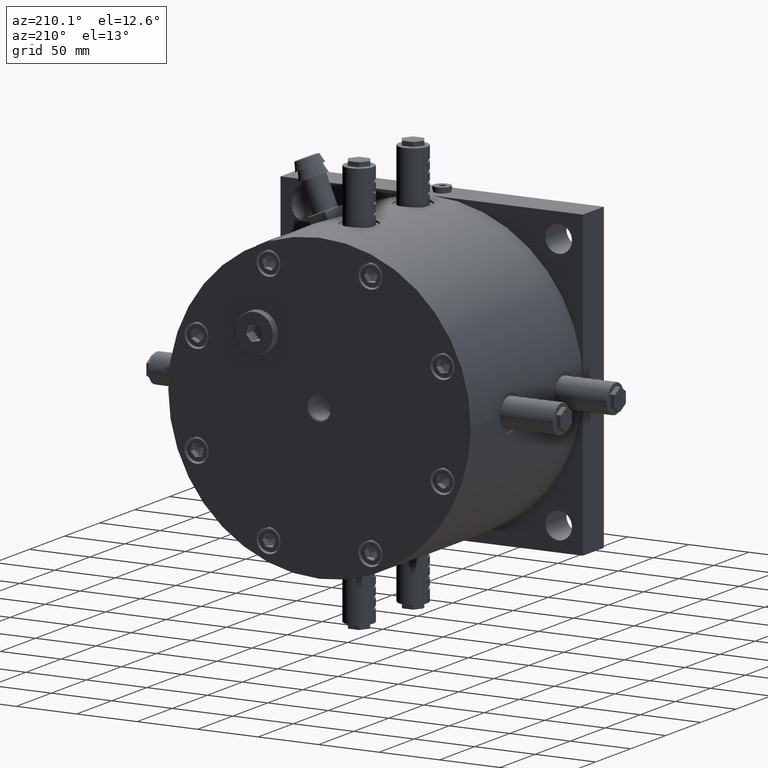
[diagram: clean part render]
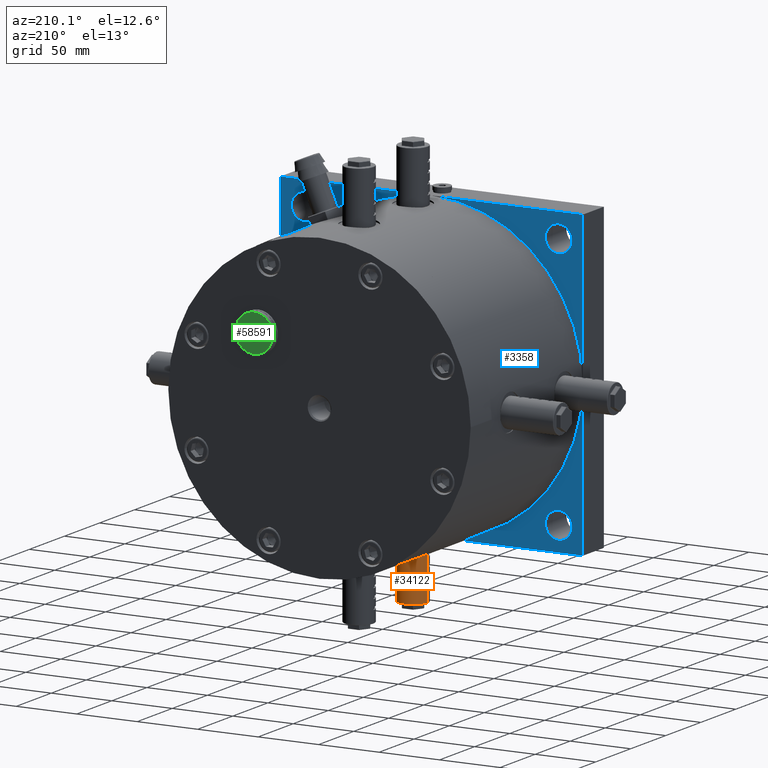
[diagram: same view with three faces highlighted in distinct colors, each labeled with its STEP entity id]
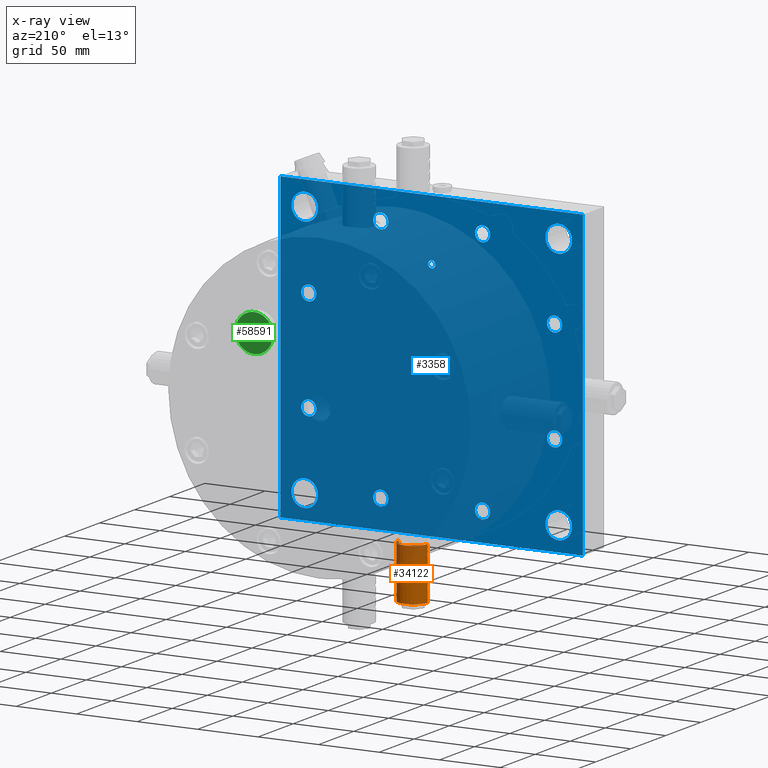
[diagram: x-ray of the same camera — body ghosted, the three highlighted faces saturated]
A machine part, auxiliary view with three faces highlighted in distinct colors.
The next image is the same camera in x-ray (body ghosted, the three faces saturated) — at least one of them is partly hidden behind the body in this view.
Their STEP definitions:

[orange] entity #34122 — the highlighted cylindrical surface (edge-blend (fillet) strip) has radius 12 mm, axis along (-0, -0, 1).
#915 = ORIENTED_EDGE ( 'NONE', *, *, #47420, .F. ) ;
#1434 = VECTOR ( 'NONE', #30612, 1000.000000000000000 ) ;
#2044 = CARTESIAN_POINT ( 'NONE',  ( 12.00000000000044100, 56.50000000000000000, -131.5000000000000000 ) ) ;
#2527 = VECTOR ( 'NONE', #56148, 1000.000000000000000 ) ;
#3130 = VERTEX_POINT ( 'NONE', #33506 ) ;
#4868 = EDGE_CURVE ( 'NONE', #11273, #29327, #64728, .T. ) ;
#5268 = CARTESIAN_POINT ( 'NONE',  ( -11.99999999999956100, 56.50000000000000000, -167.5000000000000000 ) ) ;
#5315 = VERTEX_POINT ( 'NONE', #55597 ) ;
#5705 = DIRECTION ( 'NONE',  ( 6.123031769111929400E-017, 1.648773598957214900E-031, -1.000000000000000000 ) ) ;
#6185 = CARTESIAN_POINT ( 'NONE',  ( -11.99999999999955900, 56.50000000000000000, -141.5000000000000000 ) ) ;
#6313 = CARTESIAN_POINT ( 'NONE',  ( 12.00000000000043700, 56.50000000000000000, -124.0000000000000000 ) ) ;
#6510 = CARTESIAN_POINT ( 'NONE',  ( -11.99999999999955900, 56.50000000000000000, -167.5000000000000000 ) ) ;
#6723 = VECTOR ( 'NONE', #65119, 1000.000000000000000 ) ;
#7144 = VECTOR ( 'NONE', #40169, 1000.000000000000000 ) ;
#8014 = ORIENTED_EDGE ( 'NONE', *, *, #67031, .F. ) ;
#8832 = CARTESIAN_POINT ( 'NONE',  ( -11.99999999999955900, 56.50000000000000000, -167.5000000000000000 ) ) ;
#9044 = CARTESIAN_POINT ( 'NONE',  ( 12.00000000000043900, 56.50000000000000000, -167.5000000000000000 ) ) ;
#9290 = DIRECTION ( 'NONE',  ( -6.123031769111929400E-017, -1.648773598957214900E-031, 1.000000000000000000 ) ) ;
#9435 = ORIENTED_EDGE ( 'NONE', *, *, #25353, .T. ) ;
#10596 = VECTOR ( 'NONE', #53608, 1000.000000000000000 ) ;
#11253 = FACE_OUTER_BOUND ( 'NONE', #58643, .T. ) ;
#11273 = VERTEX_POINT ( 'NONE', #44875 ) ;
#11458 = CARTESIAN_POINT ( 'NONE',  ( 12.00000000000044100, 56.50000000000000000, -133.5000000000000000 ) ) ;
#11867 = CARTESIAN_POINT ( 'NONE',  ( 12.00000000000043900, 56.50000000000000000, -167.5000000000000000 ) ) ;
#12197 = CARTESIAN_POINT ( 'NONE',  ( -11.99999999999956100, 56.50000000000000000, -167.5000000000000000 ) ) ;
#13722 = VECTOR ( 'NONE', #21747, 1000.000000000000000 ) ;
#13843 = VERTEX_POINT ( 'NONE', #37110 ) ;
#14843 = VERTEX_POINT ( 'NONE', #24616 ) ;
#16059 = LINE ( 'NONE', #63465, #7144 ) ;
#16102 = CARTESIAN_POINT ( 'NONE',  ( -11.99999999999955900, 56.50000000000000000, -155.5000000000000000 ) ) ;
#16523 = VECTOR ( 'NONE', #30525, 1000.000000000000000 ) ;
#16556 = LINE ( 'NONE', #43224, #34330 ) ;
#16588 = LINE ( 'NONE', #52472, #1434 ) ;
#16876 = CARTESIAN_POINT ( 'NONE',  ( -11.99999999999956100, 56.50000000000000000, -167.5000000000000000 ) ) ;
#16885 = CARTESIAN_POINT ( 'NONE',  ( 4.368741440305699800E-013, 56.50000000000000000, -124.0000000000000000 ) ) ;
#16994 = ORIENTED_EDGE ( 'NONE', *, *, #22216, .F. ) ;
#17354 = CARTESIAN_POINT ( 'NONE',  ( -11.99999999999955900, 56.50000000000000000, -167.5000000000000000 ) ) ;
#17902 = VERTEX_POINT ( 'NONE', #37799 ) ;
#18021 = VERTEX_POINT ( 'NONE', #55695 ) ;
#18606 = CARTESIAN_POINT ( 'NONE',  ( 12.00000000000044100, 56.50000000000000000, -167.5000000000000000 ) ) ;
#20184 = EDGE_CURVE ( 'NONE', #43194, #34807, #16588, .T. ) ;
#20406 = CARTESIAN_POINT ( 'NONE',  ( 4.395376628501340100E-013, 56.50000000000000000, -167.5000000000000000 ) ) ;
#20703 = ORIENTED_EDGE ( 'NONE', *, *, #27388, .F. ) ;
#20820 = VECTOR ( 'NONE', #23038, 1000.000000000000000 ) ;
#20829 = EDGE_CURVE ( 'NONE', #22885, #72927, #31593, .T. ) ;
#21747 = DIRECTION ( 'NONE',  ( -6.123031769111929400E-017, -1.648773598957214900E-031, 1.000000000000000000 ) ) ;
#21811 = LINE ( 'NONE', #48755, #6723 ) ;
#21879 = VERTEX_POINT ( 'NONE', #16102 ) ;
#22080 = ORIENTED_EDGE ( 'NONE', *, *, #20829, .F. ) ;
#22216 = EDGE_CURVE ( 'NONE', #24716, #28996, #71350, .T. ) ;
#22535 = DIRECTION ( 'NONE',  ( 6.123031769111929400E-017, 1.648773598957214900E-031, -1.000000000000000000 ) ) ;
#22885 = VERTEX_POINT ( 'NONE', #70042 ) ;
#23038 = DIRECTION ( 'NONE',  ( -6.123031769111929400E-017, -1.648773598957214900E-031, 1.000000000000000000 ) ) ;
#23234 = LINE ( 'NONE', #16876, #32135 ) ;
#23495 = DIRECTION ( 'NONE',  ( -6.123031769111929400E-017, -1.648773598957214900E-031, 1.000000000000000000 ) ) ;
#23721 = VECTOR ( 'NONE', #63582, 1000.000000000000000 ) ;
#24092 = ORIENTED_EDGE ( 'NONE', *, *, #52119, .T. ) ;
#24108 = EDGE_CURVE ( 'NONE', #14843, #37321, #23234, .T. ) ;
#24369 = ORIENTED_EDGE ( 'NONE', *, *, #71282, .F. ) ;
#24616 = CARTESIAN_POINT ( 'NONE',  ( -11.99999999999955900, 56.50000000000000000, -147.5000000000000000 ) ) ;
#24716 = VERTEX_POINT ( 'NONE', #2044 ) ;
#25353 = EDGE_CURVE ( 'NONE', #34807, #28996, #53294, .T. ) ;
#26268 = CARTESIAN_POINT ( 'NONE',  ( 12.00000000000044100, 56.50000000000000000, -167.5000000000000000 ) ) ;
#26321 = VECTOR ( 'NONE', #61020, 1000.000000000000000 ) ;
#26764 = CARTESIAN_POINT ( 'NONE',  ( 12.00000000000044100, 56.50000000000000000, -167.0000000000000000 ) ) ;
#26900 = CIRCLE ( 'NONE', #58074, 12.00000000000000000 ) ;
#27388 = EDGE_CURVE ( 'NONE', #11273, #37321, #41444, .T. ) ;
#28996 = VERTEX_POINT ( 'NONE', #6313 ) ;
#29327 = VERTEX_POINT ( 'NONE', #56881 ) ;
#29469 = DIRECTION ( 'NONE',  ( -6.123031769111929400E-017, -1.648773598957214900E-031, 1.000000000000000000 ) ) ;
#30525 = DIRECTION ( 'NONE',  ( -6.123031769111929400E-017, -1.648773598957214900E-031, 1.000000000000000000 ) ) ;
#30612 = DIRECTION ( 'NONE',  ( -6.123031769111929400E-017, -1.648773598957214900E-031, 1.000000000000000000 ) ) ;
#30995 = VECTOR ( 'NONE', #9290, 1000.000000000000000 ) ;
#31593 = LINE ( 'NONE', #18606, #16523 ) ;
#32135 = VECTOR ( 'NONE', #62267, 1000.000000000000000 ) ;
#33506 = CARTESIAN_POINT ( 'NONE',  ( 12.00000000000044100, 56.50000000000000000, -147.5000000000000000 ) ) ;
#34122 = ADVANCED_FACE ( 'NONE', ( #11253 ), #45877, .T. ) ;
#34330 = VECTOR ( 'NONE', #60103, 1000.000000000000000 ) ;
#34807 = VERTEX_POINT ( 'NONE', #56456 ) ;
#35040 = AXIS2_PLACEMENT_3D ( 'NONE', #16885, #22535, #67704 ) ;
#35097 = ORIENTED_EDGE ( 'NONE', *, *, #47141, .F. ) ;
#37110 = CARTESIAN_POINT ( 'NONE',  ( -11.99999999999956100, 56.50000000000000000, -167.0000000000000000 ) ) ;
#37112 = LINE ( 'NONE', #8832, #53133 ) ;
#37321 = VERTEX_POINT ( 'NONE', #6185 ) ;
#37466 = AXIS2_PLACEMENT_3D ( 'NONE', #20406, #53941, #43275 ) ;
#37645 = VERTEX_POINT ( 'NONE', #39394 ) ;
#37799 = CARTESIAN_POINT ( 'NONE',  ( 12.00000000000044100, 56.50000000000000000, -149.5000000000000000 ) ) ;
#38410 = LINE ( 'NONE', #12197, #60669 ) ;
#39394 = CARTESIAN_POINT ( 'NONE',  ( 12.00000000000044100, 56.50000000000000000, -139.5000000000000000 ) ) ;
#39589 = EDGE_CURVE ( 'NONE', #21879, #18021, #16059, .T. ) ;
#40151 = ORIENTED_EDGE ( 'NONE', *, *, #24108, .T. ) ;
#40169 = DIRECTION ( 'NONE',  ( 6.123031769111929400E-017, 1.648773598957214900E-031, -1.000000000000000000 ) ) ;
#40620 = LINE ( 'NONE', #6510, #23721 ) ;
#41088 = EDGE_CURVE ( 'NONE', #14843, #5315, #37112, .T. ) ;
#41432 = CARTESIAN_POINT ( 'NONE',  ( 4.395070476912879900E-013, 56.50000000000000000, -167.0000000000000000 ) ) ;
#41441 = EDGE_CURVE ( 'NONE', #29327, #43194, #40620, .T. ) ;
#41444 = LINE ( 'NONE', #17354, #51147 ) ;
#43194 = VERTEX_POINT ( 'NONE', #56602 ) ;
#43224 = CARTESIAN_POINT ( 'NONE',  ( -11.99999999999956100, 56.50000000000000000, -167.5000000000000000 ) ) ;
#43275 = DIRECTION ( 'NONE',  ( -1.000000000000000000, 0.0000000000000000000, 0.0000000000000000000 ) ) ;
#43588 = LINE ( 'NONE', #46327, #56896 ) ;
#43623 = VERTEX_POINT ( 'NONE', #11458 ) ;
#44117 = CARTESIAN_POINT ( 'NONE',  ( 12.00000000000043900, 56.50000000000000000, -167.5000000000000000 ) ) ;
#44765 = LINE ( 'NONE', #44117, #13722 ) ;
#44875 = CARTESIAN_POINT ( 'NONE',  ( -11.99999999999955900, 56.50000000000000000, -139.5000000000000000 ) ) ;
#45877 = CYLINDRICAL_SURFACE ( 'NONE', #37466, 12.00000000000000000 ) ;
#46327 = CARTESIAN_POINT ( 'NONE',  ( 12.00000000000043900, 56.50000000000000000, -167.5000000000000000 ) ) ;
#47097 = DIRECTION ( 'NONE',  ( 1.000000000000000000, 0.0000000000000000000, 0.0000000000000000000 ) ) ;
#47141 = EDGE_CURVE ( 'NONE', #37645, #43623, #73660, .T. ) ;
#47420 = EDGE_CURVE ( 'NONE', #17902, #3130, #70034, .T. ) ;
#47468 = LINE ( 'NONE', #68452, #20820 ) ;
#48092 = ORIENTED_EDGE ( 'NONE', *, *, #41088, .F. ) ;
#48755 = CARTESIAN_POINT ( 'NONE',  ( 12.00000000000043900, 56.50000000000000000, -167.5000000000000000 ) ) ;
#51147 = VECTOR ( 'NONE', #5705, 1000.000000000000000 ) ;
#51390 = CARTESIAN_POINT ( 'NONE',  ( 12.00000000000044100, 56.50000000000000000, -155.5000000000000000 ) ) ;
#52119 = EDGE_CURVE ( 'NONE', #21879, #5315, #38410, .T. ) ;
#52251 = EDGE_CURVE ( 'NONE', #65908, #13843, #26900, .T. ) ;
#52472 = CARTESIAN_POINT ( 'NONE',  ( -11.99999999999956100, 56.50000000000000000, -167.5000000000000000 ) ) ;
#53133 = VECTOR ( 'NONE', #66090, 1000.000000000000000 ) ;
#53294 = CIRCLE ( 'NONE', #35040, 12.00000000000000000 ) ;
#53464 = ORIENTED_EDGE ( 'NONE', *, *, #52251, .T. ) ;
#53608 = DIRECTION ( 'NONE',  ( -6.123031769111929400E-017, -1.648773598957214900E-031, 1.000000000000000000 ) ) ;
#53790 = EDGE_CURVE ( 'NONE', #72927, #17902, #44765, .T. ) ;
#53803 = LINE ( 'NONE', #26268, #26321 ) ;
#53859 = VERTEX_POINT ( 'NONE', #72389 ) ;
#53941 = DIRECTION ( 'NONE',  ( -6.123031769111929400E-017, -1.648773598957214900E-031, 1.000000000000000000 ) ) ;
#55597 = CARTESIAN_POINT ( 'NONE',  ( -11.99999999999955900, 56.50000000000000000, -149.5000000000000000 ) ) ;
#55695 = CARTESIAN_POINT ( 'NONE',  ( -11.99999999999955900, 56.50000000000000000, -157.5000000000000000 ) ) ;
#56148 = DIRECTION ( 'NONE',  ( -6.123031769111929400E-017, -1.648773598957214900E-031, 1.000000000000000000 ) ) ;
#56272 = VECTOR ( 'NONE', #23495, 1000.000000000000000 ) ;
#56456 = CARTESIAN_POINT ( 'NONE',  ( -11.99999999999956300, 56.50000000000000000, -124.0000000000000000 ) ) ;
#56602 = CARTESIAN_POINT ( 'NONE',  ( -11.99999999999955900, 56.50000000000000000, -131.5000000000000000 ) ) ;
#56881 = CARTESIAN_POINT ( 'NONE',  ( -11.99999999999955900, 56.50000000000000000, -133.5000000000000000 ) ) ;
#56896 = VECTOR ( 'NONE', #29469, 1000.000000000000000 ) ;
#57610 = DIRECTION ( 'NONE',  ( -6.123031769111929400E-017, -1.648773598957214900E-031, 1.000000000000000000 ) ) ;
#57745 = ORIENTED_EDGE ( 'NONE', *, *, #39589, .F. ) ;
#58074 = AXIS2_PLACEMENT_3D ( 'NONE', #41432, #68946, #47097 ) ;
#58643 = EDGE_LOOP ( 'NONE', ( #65769, #53464, #61959, #57745, #24092, #48092, #40151, #20703, #59443, #64942, #61783, #9435, #16994, #72250, #35097, #8014, #24369, #915, #69062, #22080 ) ) ;
#59443 = ORIENTED_EDGE ( 'NONE', *, *, #4868, .T. ) ;
#60103 = DIRECTION ( 'NONE',  ( -6.123031769111929400E-017, -1.648773598957214900E-031, 1.000000000000000000 ) ) ;
#60669 = VECTOR ( 'NONE', #57610, 1000.000000000000000 ) ;
#61020 = DIRECTION ( 'NONE',  ( 6.123031769111929400E-017, 1.648773598957214900E-031, -1.000000000000000000 ) ) ;
#61783 = ORIENTED_EDGE ( 'NONE', *, *, #20184, .T. ) ;
#61959 = ORIENTED_EDGE ( 'NONE', *, *, #73229, .T. ) ;
#62267 = DIRECTION ( 'NONE',  ( -6.123031769111929400E-017, -1.648773598957214900E-031, 1.000000000000000000 ) ) ;
#63465 = CARTESIAN_POINT ( 'NONE',  ( -11.99999999999955900, 56.50000000000000000, -167.5000000000000000 ) ) ;
#63582 = DIRECTION ( 'NONE',  ( -6.123031769111929400E-017, -1.648773598957214900E-031, 1.000000000000000000 ) ) ;
#64728 = LINE ( 'NONE', #5268, #2527 ) ;
#64942 = ORIENTED_EDGE ( 'NONE', *, *, #41441, .T. ) ;
#65119 = DIRECTION ( 'NONE',  ( -6.123031769111929400E-017, -1.648773598957214900E-031, 1.000000000000000000 ) ) ;
#65769 = ORIENTED_EDGE ( 'NONE', *, *, #66286, .F. ) ;
#65908 = VERTEX_POINT ( 'NONE', #26764 ) ;
#66090 = DIRECTION ( 'NONE',  ( 6.123031769111929400E-017, 1.648773598957214900E-031, -1.000000000000000000 ) ) ;
#66286 = EDGE_CURVE ( 'NONE', #65908, #22885, #21811, .T. ) ;
#67031 = EDGE_CURVE ( 'NONE', #53859, #37645, #47468, .T. ) ;
#67704 = DIRECTION ( 'NONE',  ( 1.000000000000000000, 0.0000000000000000000, 0.0000000000000000000 ) ) ;
#68452 = CARTESIAN_POINT ( 'NONE',  ( 12.00000000000044100, 56.50000000000000000, -167.5000000000000000 ) ) ;
#68946 = DIRECTION ( 'NONE',  ( -6.123031769111929400E-017, -1.648773598957214900E-031, 1.000000000000000000 ) ) ;
#69062 = ORIENTED_EDGE ( 'NONE', *, *, #53790, .F. ) ;
#70034 = LINE ( 'NONE', #70471, #10596 ) ;
#70042 = CARTESIAN_POINT ( 'NONE',  ( 12.00000000000044100, 56.50000000000000000, -157.5000000000000000 ) ) ;
#70471 = CARTESIAN_POINT ( 'NONE',  ( 12.00000000000044100, 56.50000000000000000, -167.5000000000000000 ) ) ;
#71282 = EDGE_CURVE ( 'NONE', #3130, #53859, #43588, .T. ) ;
#71350 = LINE ( 'NONE', #11867, #56272 ) ;
#72250 = ORIENTED_EDGE ( 'NONE', *, *, #73650, .T. ) ;
#72389 = CARTESIAN_POINT ( 'NONE',  ( 12.00000000000044100, 56.50000000000000000, -141.5000000000000000 ) ) ;
#72927 = VERTEX_POINT ( 'NONE', #51390 ) ;
#73229 = EDGE_CURVE ( 'NONE', #13843, #18021, #16556, .T. ) ;
#73650 = EDGE_CURVE ( 'NONE', #24716, #43623, #53803, .T. ) ;
#73660 = LINE ( 'NONE', #9044, #30995 ) ;

[blue] entity #3358 — the highlighted planar face has unit normal (0, -1, 0).
#80 = CARTESIAN_POINT ( 'NONE',  ( -125.0000000000000000, 30.00000000000000000, -125.0000000000000000 ) ) ;
#435 = LINE ( 'NONE', #52175, #43141 ) ;
#991 = DIRECTION ( 'NONE',  ( 0.0000000000000000000, 0.0000000000000000000, 1.000000000000000000 ) ) ;
#1473 = CARTESIAN_POINT ( 'NONE',  ( -42.09517756015995400, 30.00000000000000000, 95.37674857624139700 ) ) ;
#1652 = VERTEX_POINT ( 'NONE', #16093 ) ;
#2181 = VERTEX_POINT ( 'NONE', #42410 ) ;
#2314 = EDGE_CURVE ( 'NONE', #5091, #44240, #32372, .T. ) ;
#2542 = AXIS2_PLACEMENT_3D ( 'NONE', #71150, #47829, #48320 ) ;
#2659 = CIRCLE ( 'NONE', #13382, 6.249999999999998200 ) ;
#3030 = CARTESIAN_POINT ( 'NONE',  ( -125.0000000000000000, 30.00000000000000000, 125.0000000000000000 ) ) ;
#3296 = CIRCLE ( 'NONE', #11880, 6.250000000000005300 ) ;
#3298 = CARTESIAN_POINT ( 'NONE',  ( 105.0000000000000000, 30.00000000000000000, -105.0000000000000000 ) ) ;
#3358 = ADVANCED_FACE ( 'NONE', ( #18475, #51234, #24544, #9484, #65433, #20069, #36088, #64519, #60927, #26294, #69409, #63147, #66613, #26642 ), #41637, .F. ) ;
#3378 = CIRCLE ( 'NONE', #39895, 6.250000000000005300 ) ;
#3580 = CARTESIAN_POINT ( 'NONE',  ( -42.09517756015995400, 30.00000000000000000, 107.8767485762414100 ) ) ;
#3654 = EDGE_CURVE ( 'NONE', #44678, #15412, #14129, .T. ) ;
#3699 = ORIENTED_EDGE ( 'NONE', *, *, #72970, .F. ) ;
#4877 = VECTOR ( 'NONE', #54835, 1000.000000000000000 ) ;
#5091 = VERTEX_POINT ( 'NONE', #46149 ) ;
#5124 = AXIS2_PLACEMENT_3D ( 'NONE', #57820, #23801, #41201 ) ;
#5318 = LINE ( 'NONE', #64375, #26613 ) ;
#6339 = VERTEX_POINT ( 'NONE', #46191 ) ;
#6830 = EDGE_LOOP ( 'NONE', ( #20488, #10200 ) ) ;
#6915 = DIRECTION ( 'NONE',  ( 0.0000000000000000000, 0.0000000000000000000, -1.000000000000000000 ) ) ;
#7196 = ORIENTED_EDGE ( 'NONE', *, *, #50515, .T. ) ;
#7355 = VERTEX_POINT ( 'NONE', #30387 ) ;
#7950 = AXIS2_PLACEMENT_3D ( 'NONE', #37082, #37348, #59969 ) ;
#8055 = DIRECTION ( 'NONE',  ( 0.0000000000000000000, 0.0000000000000000000, -1.000000000000000000 ) ) ;
#8336 = DIRECTION ( 'NONE',  ( 0.0000000000000000000, 1.000000000000000000, 0.0000000000000000000 ) ) ;
#8948 = DIRECTION ( 'NONE',  ( 0.0000000000000000000, 0.0000000000000000000, 1.000000000000000000 ) ) ;
#9047 = DIRECTION ( 'NONE',  ( 0.0000000000000000000, 0.0000000000000000000, 1.000000000000000000 ) ) ;
#9154 = AXIS2_PLACEMENT_3D ( 'NONE', #72751, #61123, #21131 ) ;
#9484 = FACE_BOUND ( 'NONE', #72838, .T. ) ;
#9813 = CARTESIAN_POINT ( 'NONE',  ( -42.09517756015925000, 30.00000000000000000, -107.8767485762418100 ) ) ;
#9916 = CARTESIAN_POINT ( 'NONE',  ( -105.0000000000000000, 30.00000000000000000, -115.9999999999999900 ) ) ;
#10200 = ORIENTED_EDGE ( 'NONE', *, *, #2314, .T. ) ;
#10311 = CIRCLE ( 'NONE', #48884, 10.99999999999999600 ) ;
#10488 = VERTEX_POINT ( 'NONE', #37214 ) ;
#10864 = DIRECTION ( 'NONE',  ( 0.0000000000000000000, 0.0000000000000000000, 1.000000000000000000 ) ) ;
#11185 = EDGE_CURVE ( 'NONE', #73280, #6339, #36281, .T. ) ;
#11286 = AXIS2_PLACEMENT_3D ( 'NONE', #61484, #21757, #21507 ) ;
#11294 = EDGE_CURVE ( 'NONE', #30461, #68786, #53250, .T. ) ;
#11880 = AXIS2_PLACEMENT_3D ( 'NONE', #61183, #38824, #27887 ) ;
#11937 = VERTEX_POINT ( 'NONE', #49973 ) ;
#12120 = DIRECTION ( 'NONE',  ( 0.0000000000000000000, 0.0000000000000000000, -1.000000000000000000 ) ) ;
#12153 = DIRECTION ( 'NONE',  ( 0.0000000000000000000, -1.000000000000000000, 0.0000000000000000000 ) ) ;
#12243 = CARTESIAN_POINT ( 'NONE',  ( 42.09517756016070000, 30.00000000000000000, -95.37674857624119800 ) ) ;
#12359 = DIRECTION ( 'NONE',  ( 0.0000000000000000000, -1.000000000000000000, 0.0000000000000000000 ) ) ;
#12626 = LINE ( 'NONE', #41023, #20580 ) ;
#12714 = DIRECTION ( 'NONE',  ( -1.000000000000000000, 0.0000000000000000000, 5.551115123125779600E-017 ) ) ;
#12844 = CARTESIAN_POINT ( 'NONE',  ( -125.0000000000000000, 30.00000000000000000, 125.0000000000000000 ) ) ;
#12859 = CARTESIAN_POINT ( 'NONE',  ( 42.09517756016070000, 30.00000000000000000, -101.6267485762412000 ) ) ;
#13356 = ORIENTED_EDGE ( 'NONE', *, *, #62262, .T. ) ;
#13382 = AXIS2_PLACEMENT_3D ( 'NONE', #26911, #38798, #27633 ) ;
#13538 = CARTESIAN_POINT ( 'NONE',  ( 125.0000000000000000, 30.00000000000000000, 125.0000000000000000 ) ) ;
#13572 = DIRECTION ( 'NONE',  ( 0.0000000000000000000, -1.000000000000000000, 0.0000000000000000000 ) ) ;
#13697 = ORIENTED_EDGE ( 'NONE', *, *, #11185, .F. ) ;
#13698 = CARTESIAN_POINT ( 'NONE',  ( 42.09517756015995400, 30.00000000000000000, 107.8767485762414100 ) ) ;
#14129 = CIRCLE ( 'NONE', #61294, 6.249999999999998200 ) ;
#14213 = VERTEX_POINT ( 'NONE', #9916 ) ;
#14218 = DIRECTION ( 'NONE',  ( 0.0000000000000000000, 0.0000000000000000000, -1.000000000000000000 ) ) ;
#14550 = CARTESIAN_POINT ( 'NONE',  ( 101.6267485762410000, 30.00000000000000000, 42.09517756016104800 ) ) ;
#14601 = DIRECTION ( 'NONE',  ( 0.0000000000000000000, -1.000000000000000000, 0.0000000000000000000 ) ) ;
#14614 = VERTEX_POINT ( 'NONE', #80 ) ;
#14996 = CIRCLE ( 'NONE', #26433, 6.249999999999998200 ) ;
#15115 = CARTESIAN_POINT ( 'NONE',  ( 125.0000000000000000, 30.00000000000000000, 125.0000000000000000 ) ) ;
#15412 = VERTEX_POINT ( 'NONE', #52859 ) ;
#16093 = CARTESIAN_POINT ( 'NONE',  ( -105.0000000000000000, 30.00000000000000000, -94.00000000000000000 ) ) ;
#16110 = DIRECTION ( 'NONE',  ( 0.0000000000000000000, -1.000000000000000000, 0.0000000000000000000 ) ) ;
#17248 = AXIS2_PLACEMENT_3D ( 'NONE', #3298, #43057, #9047 ) ;
#17327 = CIRCLE ( 'NONE', #42417, 6.249999999999998200 ) ;
#17346 = CARTESIAN_POINT ( 'NONE',  ( -101.6267485762416000, 30.00000000000000000, 35.84517756015959800 ) ) ;
#17460 = DIRECTION ( 'NONE',  ( 0.0000000000000000000, -1.000000000000000000, 0.0000000000000000000 ) ) ;
#17796 = CIRCLE ( 'NONE', #45396, 6.249999999999998200 ) ;
#17798 = CARTESIAN_POINT ( 'NONE',  ( -105.0000000000000000, 30.00000000000000000, -105.0000000000000000 ) ) ;
#18136 = ORIENTED_EDGE ( 'NONE', *, *, #33359, .T. ) ;
#18475 = FACE_BOUND ( 'NONE', #40529, .T. ) ;
#19670 = CARTESIAN_POINT ( 'NONE',  ( 3.673940397442056400E-016, 30.00000000000000000, 71.50000000000000000 ) ) ;
#19893 = CARTESIAN_POINT ( 'NONE',  ( 101.6267485762420100, 30.00000000000000000, -42.09517756015889500 ) ) ;
#19970 = CARTESIAN_POINT ( 'NONE',  ( 105.0000000000000000, 30.00000000000000000, 105.0000000000000000 ) ) ;
#20069 = FACE_BOUND ( 'NONE', #6830, .T. ) ;
#20231 = AXIS2_PLACEMENT_3D ( 'NONE', #58002, #13572, #58989 ) ;
#20288 = VERTEX_POINT ( 'NONE', #59687 ) ;
#20410 = EDGE_CURVE ( 'NONE', #27574, #71390, #37867, .T. ) ;
#20488 = ORIENTED_EDGE ( 'NONE', *, *, #47567, .T. ) ;
#20580 = VECTOR ( 'NONE', #12714, 1000.000000000000000 ) ;
#20817 = DIRECTION ( 'NONE',  ( 0.0000000000000000000, -1.000000000000000000, 0.0000000000000000000 ) ) ;
#21131 = DIRECTION ( 'NONE',  ( 0.0000000000000000000, 0.0000000000000000000, -1.000000000000000000 ) ) ;
#21507 = DIRECTION ( 'NONE',  ( 0.0000000000000000000, 0.0000000000000000000, -1.000000000000000000 ) ) ;
#21757 = DIRECTION ( 'NONE',  ( 0.0000000000000000000, -1.000000000000000000, 0.0000000000000000000 ) ) ;
#22181 = ORIENTED_EDGE ( 'NONE', *, *, #65492, .T. ) ;
#22703 = ORIENTED_EDGE ( 'NONE', *, *, #47697, .F. ) ;
#23801 = DIRECTION ( 'NONE',  ( 0.0000000000000000000, 1.000000000000000000, 0.0000000000000000000 ) ) ;
#24544 = FACE_BOUND ( 'NONE', #47787, .T. ) ;
#24733 = DIRECTION ( 'NONE',  ( 0.0000000000000000000, -1.000000000000000000, 0.0000000000000000000 ) ) ;
#24881 = CIRCLE ( 'NONE', #7950, 3.000000000000002700 ) ;
#25260 = VERTEX_POINT ( 'NONE', #69252 ) ;
#25418 = VERTEX_POINT ( 'NONE', #17346 ) ;
#26081 = ORIENTED_EDGE ( 'NONE', *, *, #54670, .T. ) ;
#26294 = FACE_BOUND ( 'NONE', #34101, .T. ) ;
#26433 = AXIS2_PLACEMENT_3D ( 'NONE', #26555, #20817, #71222 ) ;
#26452 = AXIS2_PLACEMENT_3D ( 'NONE', #39399, #45090, #10864 ) ;
#26555 = CARTESIAN_POINT ( 'NONE',  ( -101.6267485762414100, 30.00000000000000000, -42.09517756016034400 ) ) ;
#26613 = VECTOR ( 'NONE', #53446, 1000.000000000000000 ) ;
#26642 = FACE_OUTER_BOUND ( 'NONE', #31935, .T. ) ;
#26790 = ORIENTED_EDGE ( 'NONE', *, *, #31209, .T. ) ;
#26811 = AXIS2_PLACEMENT_3D ( 'NONE', #50081, #16110, #55823 ) ;
#26911 = CARTESIAN_POINT ( 'NONE',  ( -101.6267485762416000, 30.00000000000000000, 42.09517756015959800 ) ) ;
#27138 = EDGE_LOOP ( 'NONE', ( #48359, #26081 ) ) ;
#27574 = VERTEX_POINT ( 'NONE', #34934 ) ;
#27633 = DIRECTION ( 'NONE',  ( 0.0000000000000000000, 0.0000000000000000000, -1.000000000000000000 ) ) ;
#27723 = CARTESIAN_POINT ( 'NONE',  ( -101.6267485762416000, 30.00000000000000000, 48.34517756015959800 ) ) ;
#27887 = DIRECTION ( 'NONE',  ( 0.0000000000000000000, 0.0000000000000000000, -1.000000000000000000 ) ) ;
#28465 = CIRCLE ( 'NONE', #2542, 6.249999999999998200 ) ;
#28859 = DIRECTION ( 'NONE',  ( 0.0000000000000000000, 0.0000000000000000000, -1.000000000000000000 ) ) ;
#29025 = AXIS2_PLACEMENT_3D ( 'NONE', #17798, #29680, #69397 ) ;
#29068 = VERTEX_POINT ( 'NONE', #19670 ) ;
#29460 = CARTESIAN_POINT ( 'NONE',  ( 42.09517756015995400, 30.00000000000000000, 101.6267485762414100 ) ) ;
#29680 = DIRECTION ( 'NONE',  ( 0.0000000000000000000, 1.000000000000000000, 0.0000000000000000000 ) ) ;
#30387 = CARTESIAN_POINT ( 'NONE',  ( 101.6267485762410000, 30.00000000000000000, 48.34517756016104800 ) ) ;
#30458 = CIRCLE ( 'NONE', #72788, 6.250000000000005300 ) ;
#30461 = VERTEX_POINT ( 'NONE', #1473 ) ;
#30646 = CIRCLE ( 'NONE', #26452, 10.99999999999999600 ) ;
#31036 = EDGE_CURVE ( 'NONE', #33988, #36092, #71135, .T. ) ;
#31209 = EDGE_CURVE ( 'NONE', #61567, #25418, #28465, .T. ) ;
#31408 = DIRECTION ( 'NONE',  ( 0.0000000000000000000, 0.0000000000000000000, -1.000000000000000000 ) ) ;
#31613 = EDGE_CURVE ( 'NONE', #15412, #44678, #17796, .T. ) ;
#31935 = EDGE_LOOP ( 'NONE', ( #52712, #42697, #73006, #41785 ) ) ;
#32372 = CIRCLE ( 'NONE', #40586, 6.249999999999998200 ) ;
#33354 = ORIENTED_EDGE ( 'NONE', *, *, #34617, .F. ) ;
#33359 = EDGE_CURVE ( 'NONE', #36092, #33988, #72638, .T. ) ;
#33429 = EDGE_LOOP ( 'NONE', ( #33354, #51200 ) ) ;
#33643 = EDGE_CURVE ( 'NONE', #64296, #25260, #60186, .T. ) ;
#33857 = EDGE_LOOP ( 'NONE', ( #22703, #47519 ) ) ;
#33988 = VERTEX_POINT ( 'NONE', #35317 ) ;
#34033 = VERTEX_POINT ( 'NONE', #3030 ) ;
#34084 = ORIENTED_EDGE ( 'NONE', *, *, #68850, .T. ) ;
#34101 = EDGE_LOOP ( 'NONE', ( #62158, #3699 ) ) ;
#34617 = EDGE_CURVE ( 'NONE', #25260, #64296, #10311, .T. ) ;
#34934 = CARTESIAN_POINT ( 'NONE',  ( 105.0000000000000000, 30.00000000000000000, -94.00000000000000000 ) ) ;
#35022 = DIRECTION ( 'NONE',  ( 0.0000000000000000000, 1.000000000000000000, 0.0000000000000000000 ) ) ;
#35290 = DIRECTION ( 'NONE',  ( 1.000000000000000000, 0.0000000000000000000, 0.0000000000000000000 ) ) ;
#35317 = CARTESIAN_POINT ( 'NONE',  ( 42.09517756016070000, 30.00000000000000000, -107.8767485762412000 ) ) ;
#35906 = CARTESIAN_POINT ( 'NONE',  ( 105.0000000000000000, 30.00000000000000000, -115.9999999999999900 ) ) ;
#36088 = FACE_BOUND ( 'NONE', #63747, .T. ) ;
#36092 = VERTEX_POINT ( 'NONE', #12243 ) ;
#36281 = CIRCLE ( 'NONE', #68622, 10.99999999999999600 ) ;
#36300 = AXIS2_PLACEMENT_3D ( 'NONE', #14550, #59750, #31408 ) ;
#36818 = ORIENTED_EDGE ( 'NONE', *, *, #67950, .F. ) ;
#37082 = CARTESIAN_POINT ( 'NONE',  ( 0.0000000000000000000, 30.00000000000000000, 74.50000000000000000 ) ) ;
#37214 = CARTESIAN_POINT ( 'NONE',  ( -42.09517756015925000, 30.00000000000000000, -95.37674857624179500 ) ) ;
#37348 = DIRECTION ( 'NONE',  ( 0.0000000000000000000, 1.000000000000000000, 0.0000000000000000000 ) ) ;
#37365 = EDGE_CURVE ( 'NONE', #50070, #73141, #30458, .T. ) ;
#37867 = CIRCLE ( 'NONE', #17248, 10.99999999999999600 ) ;
#38344 = EDGE_CURVE ( 'NONE', #20288, #14614, #12626, .T. ) ;
#38621 = LINE ( 'NONE', #15115, #4877 ) ;
#38798 = DIRECTION ( 'NONE',  ( 0.0000000000000000000, -1.000000000000000000, 0.0000000000000000000 ) ) ;
#38824 = DIRECTION ( 'NONE',  ( 0.0000000000000000000, -1.000000000000000000, 0.0000000000000000000 ) ) ;
#39399 = CARTESIAN_POINT ( 'NONE',  ( -105.0000000000000000, 30.00000000000000000, 105.0000000000000000 ) ) ;
#39895 = AXIS2_PLACEMENT_3D ( 'NONE', #29460, #24733, #70146 ) ;
#40300 = CARTESIAN_POINT ( 'NONE',  ( 101.6267485762410000, 30.00000000000000000, 42.09517756016104800 ) ) ;
#40529 = EDGE_LOOP ( 'NONE', ( #71359, #36818 ) ) ;
#40586 = AXIS2_PLACEMENT_3D ( 'NONE', #48578, #14601, #43150 ) ;
#40856 = AXIS2_PLACEMENT_3D ( 'NONE', #12844, #47561, #53255 ) ;
#41023 = CARTESIAN_POINT ( 'NONE',  ( -125.0000000000000000, 30.00000000000000000, -125.0000000000000000 ) ) ;
#41201 = DIRECTION ( 'NONE',  ( 0.0000000000000000000, 0.0000000000000000000, 1.000000000000000000 ) ) ;
#41625 = EDGE_LOOP ( 'NONE', ( #60994, #7196 ) ) ;
#41637 = PLANE ( 'NONE',  #40856 ) ;
#41785 = ORIENTED_EDGE ( 'NONE', *, *, #38344, .T. ) ;
#42342 = DIRECTION ( 'NONE',  ( 0.0000000000000000000, 0.0000000000000000000, 1.000000000000000000 ) ) ;
#42410 = CARTESIAN_POINT ( 'NONE',  ( 0.0000000000000000000, 30.00000000000000000, 77.50000000000000000 ) ) ;
#42417 = AXIS2_PLACEMENT_3D ( 'NONE', #40300, #17460, #28859 ) ;
#42604 = DIRECTION ( 'NONE',  ( 0.0000000000000000000, 0.0000000000000000000, 1.000000000000000000 ) ) ;
#42605 = DIRECTION ( 'NONE',  ( 0.0000000000000000000, 1.000000000000000000, 0.0000000000000000000 ) ) ;
#42697 = ORIENTED_EDGE ( 'NONE', *, *, #42729, .T. ) ;
#42729 = EDGE_CURVE ( 'NONE', #34033, #71777, #435, .T. ) ;
#42733 = EDGE_CURVE ( 'NONE', #11937, #7355, #17327, .T. ) ;
#42948 = DIRECTION ( 'NONE',  ( 0.0000000000000000000, 1.000000000000000000, 0.0000000000000000000 ) ) ;
#43053 = AXIS2_PLACEMENT_3D ( 'NONE', #12859, #12359, #12120 ) ;
#43057 = DIRECTION ( 'NONE',  ( 0.0000000000000000000, 1.000000000000000000, 0.0000000000000000000 ) ) ;
#43141 = VECTOR ( 'NONE', #35290, 1000.000000000000000 ) ;
#43150 = DIRECTION ( 'NONE',  ( 0.0000000000000000000, 0.0000000000000000000, -1.000000000000000000 ) ) ;
#44007 = EDGE_CURVE ( 'NONE', #71777, #20288, #38621, .T. ) ;
#44240 = VERTEX_POINT ( 'NONE', #56051 ) ;
#44678 = VERTEX_POINT ( 'NONE', #45762 ) ;
#45090 = DIRECTION ( 'NONE',  ( 0.0000000000000000000, 1.000000000000000000, 0.0000000000000000000 ) ) ;
#45108 = CIRCLE ( 'NONE', #9154, 6.250000000000005300 ) ;
#45396 = AXIS2_PLACEMENT_3D ( 'NONE', #54207, #59671, #8055 ) ;
#45424 = AXIS2_PLACEMENT_3D ( 'NONE', #72186, #65978, #8948 ) ;
#45762 = CARTESIAN_POINT ( 'NONE',  ( 101.6267485762420100, 30.00000000000000000, -35.84517756015889500 ) ) ;
#46149 = CARTESIAN_POINT ( 'NONE',  ( -101.6267485762414100, 30.00000000000000000, -35.84517756016034400 ) ) ;
#46191 = CARTESIAN_POINT ( 'NONE',  ( -105.0000000000000000, 30.00000000000000000, 94.00000000000000000 ) ) ;
#47012 = EDGE_CURVE ( 'NONE', #14614, #34033, #5318, .T. ) ;
#47319 = CIRCLE ( 'NONE', #29025, 10.99999999999999600 ) ;
#47519 = ORIENTED_EDGE ( 'NONE', *, *, #51908, .F. ) ;
#47561 = DIRECTION ( 'NONE',  ( 0.0000000000000000000, -1.000000000000000000, 0.0000000000000000000 ) ) ;
#47567 = EDGE_CURVE ( 'NONE', #44240, #5091, #14996, .T. ) ;
#47697 = EDGE_CURVE ( 'NONE', #1652, #14213, #58520, .T. ) ;
#47787 = EDGE_LOOP ( 'NONE', ( #60860, #67125 ) ) ;
#47829 = DIRECTION ( 'NONE',  ( 0.0000000000000000000, -1.000000000000000000, 0.0000000000000000000 ) ) ;
#48320 = DIRECTION ( 'NONE',  ( 0.0000000000000000000, 0.0000000000000000000, -1.000000000000000000 ) ) ;
#48359 = ORIENTED_EDGE ( 'NONE', *, *, #42733, .T. ) ;
#48578 = CARTESIAN_POINT ( 'NONE',  ( -101.6267485762414100, 30.00000000000000000, -42.09517756016034400 ) ) ;
#48884 = AXIS2_PLACEMENT_3D ( 'NONE', #59468, #8336, #42604 ) ;
#49114 = EDGE_CURVE ( 'NONE', #2181, #29068, #24881, .T. ) ;
#49973 = CARTESIAN_POINT ( 'NONE',  ( 101.6267485762410000, 30.00000000000000000, 35.84517756016104800 ) ) ;
#50070 = VERTEX_POINT ( 'NONE', #66971 ) ;
#50081 = CARTESIAN_POINT ( 'NONE',  ( -42.09517756015995400, 30.00000000000000000, 101.6267485762414100 ) ) ;
#50515 = EDGE_CURVE ( 'NONE', #73141, #50070, #3378, .T. ) ;
#50623 = CARTESIAN_POINT ( 'NONE',  ( -105.0000000000000000, 30.00000000000000000, 115.9999999999999900 ) ) ;
#51200 = ORIENTED_EDGE ( 'NONE', *, *, #33643, .F. ) ;
#51234 = FACE_BOUND ( 'NONE', #27138, .T. ) ;
#51908 = EDGE_CURVE ( 'NONE', #14213, #1652, #47319, .T. ) ;
#52175 = CARTESIAN_POINT ( 'NONE',  ( -125.0000000000000000, 30.00000000000000000, 125.0000000000000000 ) ) ;
#52374 = CIRCLE ( 'NONE', #62581, 10.99999999999999600 ) ;
#52547 = CIRCLE ( 'NONE', #20231, 6.250000000000005300 ) ;
#52712 = ORIENTED_EDGE ( 'NONE', *, *, #47012, .T. ) ;
#52859 = CARTESIAN_POINT ( 'NONE',  ( 101.6267485762420100, 30.00000000000000000, -48.34517756015889500 ) ) ;
#53250 = CIRCLE ( 'NONE', #26811, 6.250000000000005300 ) ;
#53255 = DIRECTION ( 'NONE',  ( 0.0000000000000000000, 0.0000000000000000000, -1.000000000000000000 ) ) ;
#53446 = DIRECTION ( 'NONE',  ( 0.0000000000000000000, 0.0000000000000000000, 1.000000000000000000 ) ) ;
#54207 = CARTESIAN_POINT ( 'NONE',  ( 101.6267485762420100, 30.00000000000000000, -42.09517756015889500 ) ) ;
#54670 = EDGE_CURVE ( 'NONE', #7355, #11937, #56160, .T. ) ;
#54835 = DIRECTION ( 'NONE',  ( 0.0000000000000000000, 0.0000000000000000000, -1.000000000000000000 ) ) ;
#55094 = CARTESIAN_POINT ( 'NONE',  ( -105.0000000000000000, 30.00000000000000000, 105.0000000000000000 ) ) ;
#55823 = DIRECTION ( 'NONE',  ( 0.0000000000000000000, 0.0000000000000000000, -1.000000000000000000 ) ) ;
#56051 = CARTESIAN_POINT ( 'NONE',  ( -101.6267485762414100, 30.00000000000000000, -48.34517756016034400 ) ) ;
#56160 = CIRCLE ( 'NONE', #36300, 6.249999999999998200 ) ;
#57264 = EDGE_LOOP ( 'NONE', ( #73584, #22181 ) ) ;
#57820 = CARTESIAN_POINT ( 'NONE',  ( 0.0000000000000000000, 30.00000000000000000, 74.50000000000000000 ) ) ;
#58002 = CARTESIAN_POINT ( 'NONE',  ( -42.09517756015995400, 30.00000000000000000, 101.6267485762414100 ) ) ;
#58298 = CARTESIAN_POINT ( 'NONE',  ( 42.09517756015995400, 30.00000000000000000, 101.6267485762414100 ) ) ;
#58520 = CIRCLE ( 'NONE', #45424, 10.99999999999999600 ) ;
#58989 = DIRECTION ( 'NONE',  ( 0.0000000000000000000, 0.0000000000000000000, -1.000000000000000000 ) ) ;
#59468 = CARTESIAN_POINT ( 'NONE',  ( 105.0000000000000000, 30.00000000000000000, 105.0000000000000000 ) ) ;
#59488 = VERTEX_POINT ( 'NONE', #9813 ) ;
#59671 = DIRECTION ( 'NONE',  ( 0.0000000000000000000, -1.000000000000000000, 0.0000000000000000000 ) ) ;
#59687 = CARTESIAN_POINT ( 'NONE',  ( 125.0000000000000000, 30.00000000000000000, -125.0000000000000000 ) ) ;
#59750 = DIRECTION ( 'NONE',  ( 0.0000000000000000000, -1.000000000000000000, 0.0000000000000000000 ) ) ;
#59835 = DIRECTION ( 'NONE',  ( 0.0000000000000000000, 0.0000000000000000000, 1.000000000000000000 ) ) ;
#59969 = DIRECTION ( 'NONE',  ( 0.0000000000000000000, 0.0000000000000000000, 1.000000000000000000 ) ) ;
#60186 = CIRCLE ( 'NONE', #69737, 10.99999999999999600 ) ;
#60860 = ORIENTED_EDGE ( 'NONE', *, *, #31613, .T. ) ;
#60927 = FACE_BOUND ( 'NONE', #41625, .T. ) ;
#60994 = ORIENTED_EDGE ( 'NONE', *, *, #37365, .T. ) ;
#61123 = DIRECTION ( 'NONE',  ( 0.0000000000000000000, -1.000000000000000000, 0.0000000000000000000 ) ) ;
#61183 = CARTESIAN_POINT ( 'NONE',  ( -42.09517756015925000, 30.00000000000000000, -101.6267485762418100 ) ) ;
#61294 = AXIS2_PLACEMENT_3D ( 'NONE', #19893, #64337, #14218 ) ;
#61484 = CARTESIAN_POINT ( 'NONE',  ( 42.09517756016070000, 30.00000000000000000, -101.6267485762412000 ) ) ;
#61498 = CIRCLE ( 'NONE', #5124, 3.000000000000002700 ) ;
#61504 = ORIENTED_EDGE ( 'NONE', *, *, #66050, .F. ) ;
#61567 = VERTEX_POINT ( 'NONE', #27723 ) ;
#62158 = ORIENTED_EDGE ( 'NONE', *, *, #20410, .F. ) ;
#62262 = EDGE_CURVE ( 'NONE', #59488, #10488, #45108, .T. ) ;
#62581 = AXIS2_PLACEMENT_3D ( 'NONE', #69032, #35022, #991 ) ;
#63147 = FACE_BOUND ( 'NONE', #33857, .T. ) ;
#63632 = ORIENTED_EDGE ( 'NONE', *, *, #31036, .T. ) ;
#63747 = EDGE_LOOP ( 'NONE', ( #69090, #26790 ) ) ;
#64265 = EDGE_LOOP ( 'NONE', ( #13356, #34084 ) ) ;
#64296 = VERTEX_POINT ( 'NONE', #66372 ) ;
#64337 = DIRECTION ( 'NONE',  ( 0.0000000000000000000, -1.000000000000000000, 0.0000000000000000000 ) ) ;
#64375 = CARTESIAN_POINT ( 'NONE',  ( -125.0000000000000000, 30.00000000000000000, 125.0000000000000000 ) ) ;
#64519 = FACE_BOUND ( 'NONE', #57264, .T. ) ;
#65333 = EDGE_LOOP ( 'NONE', ( #13697, #61504 ) ) ;
#65433 = FACE_BOUND ( 'NONE', #64265, .T. ) ;
#65492 = EDGE_CURVE ( 'NONE', #68786, #30461, #52547, .T. ) ;
#65978 = DIRECTION ( 'NONE',  ( 0.0000000000000000000, 1.000000000000000000, 0.0000000000000000000 ) ) ;
#66050 = EDGE_CURVE ( 'NONE', #6339, #73280, #30646, .T. ) ;
#66372 = CARTESIAN_POINT ( 'NONE',  ( 105.0000000000000000, 30.00000000000000000, 94.00000000000000000 ) ) ;
#66613 = FACE_BOUND ( 'NONE', #65333, .T. ) ;
#66971 = CARTESIAN_POINT ( 'NONE',  ( 42.09517756015995400, 30.00000000000000000, 95.37674857624139700 ) ) ;
#67125 = ORIENTED_EDGE ( 'NONE', *, *, #3654, .T. ) ;
#67950 = EDGE_CURVE ( 'NONE', #29068, #2181, #61498, .T. ) ;
#68622 = AXIS2_PLACEMENT_3D ( 'NONE', #55094, #42948, #59835 ) ;
#68786 = VERTEX_POINT ( 'NONE', #3580 ) ;
#68850 = EDGE_CURVE ( 'NONE', #10488, #59488, #3296, .T. ) ;
#69032 = CARTESIAN_POINT ( 'NONE',  ( 105.0000000000000000, 30.00000000000000000, -105.0000000000000000 ) ) ;
#69090 = ORIENTED_EDGE ( 'NONE', *, *, #71942, .T. ) ;
#69252 = CARTESIAN_POINT ( 'NONE',  ( 105.0000000000000000, 30.00000000000000000, 115.9999999999999900 ) ) ;
#69397 = DIRECTION ( 'NONE',  ( 0.0000000000000000000, 0.0000000000000000000, 1.000000000000000000 ) ) ;
#69409 = FACE_BOUND ( 'NONE', #33429, .T. ) ;
#69737 = AXIS2_PLACEMENT_3D ( 'NONE', #19970, #42605, #42342 ) ;
#70146 = DIRECTION ( 'NONE',  ( 0.0000000000000000000, 0.0000000000000000000, -1.000000000000000000 ) ) ;
#71135 = CIRCLE ( 'NONE', #43053, 6.250000000000005300 ) ;
#71150 = CARTESIAN_POINT ( 'NONE',  ( -101.6267485762416000, 30.00000000000000000, 42.09517756015959800 ) ) ;
#71222 = DIRECTION ( 'NONE',  ( 0.0000000000000000000, 0.0000000000000000000, -1.000000000000000000 ) ) ;
#71359 = ORIENTED_EDGE ( 'NONE', *, *, #49114, .F. ) ;
#71390 = VERTEX_POINT ( 'NONE', #35906 ) ;
#71777 = VERTEX_POINT ( 'NONE', #13538 ) ;
#71942 = EDGE_CURVE ( 'NONE', #25418, #61567, #2659, .T. ) ;
#72186 = CARTESIAN_POINT ( 'NONE',  ( -105.0000000000000000, 30.00000000000000000, -105.0000000000000000 ) ) ;
#72638 = CIRCLE ( 'NONE', #11286, 6.250000000000005300 ) ;
#72751 = CARTESIAN_POINT ( 'NONE',  ( -42.09517756015925000, 30.00000000000000000, -101.6267485762418100 ) ) ;
#72788 = AXIS2_PLACEMENT_3D ( 'NONE', #58298, #12153, #6915 ) ;
#72838 = EDGE_LOOP ( 'NONE', ( #63632, #18136 ) ) ;
#72970 = EDGE_CURVE ( 'NONE', #71390, #27574, #52374, .T. ) ;
#73006 = ORIENTED_EDGE ( 'NONE', *, *, #44007, .T. ) ;
#73141 = VERTEX_POINT ( 'NONE', #13698 ) ;
#73280 = VERTEX_POINT ( 'NONE', #50623 ) ;
#73584 = ORIENTED_EDGE ( 'NONE', *, *, #11294, .T. ) ;

[green] entity #58591 — the highlighted planar face has unit normal (-0, 1, -0).
#1121 = LINE ( 'NONE', #10146, #73105 ) ;
#1131 = CARTESIAN_POINT ( 'NONE',  ( 38.79672476388029200, 196.0000000000000000, 60.65364042277968100 ) ) ;
#1971 = DIRECTION ( 'NONE',  ( 0.7588006510295102200, 0.0000000000000000000, -0.6513229398671533900 ) ) ;
#3387 = ORIENTED_EDGE ( 'NONE', *, *, #23903, .F. ) ;
#5498 = DIRECTION ( 'NONE',  ( 0.6513229398671533900, 1.101216559111134200E-015, 0.7588006510295102200 ) ) ;
#5606 = CARTESIAN_POINT ( 'NONE',  ( 57.36718760898480000, 196.0000000000000000, 49.27875977643480400 ) ) ;
#5636 = VERTEX_POINT ( 'NONE', #55126 ) ;
#6603 = VECTOR ( 'NONE', #5498, 1000.000000000000100 ) ;
#7105 = LINE ( 'NONE', #64018, #56910 ) ;
#8186 = ORIENTED_EDGE ( 'NONE', *, *, #58988, .F. ) ;
#9588 = EDGE_CURVE ( 'NONE', #5636, #21069, #7105, .T. ) ;
#10096 = VERTEX_POINT ( 'NONE', #31653 ) ;
#10146 = CARTESIAN_POINT ( 'NONE',  ( 57.36718760898480000, 196.0000000000000000, 49.27875977643480400 ) ) ;
#10589 = DIRECTION ( 'NONE',  ( 0.7588006510295103300, 7.118874781781032300E-016, -0.6513229398671532800 ) ) ;
#13445 = CARTESIAN_POINT ( 'NONE',  ( 52.85468991304460200, 196.0000000000000000, 44.02163465483700100 ) ) ;
#14490 = CARTESIAN_POINT ( 'NONE',  ( 48.26157979663070600, 196.0000000000000000, 57.09463505484059500 ) ) ;
#14509 = EDGE_LOOP ( 'NONE', ( #40278, #67189 ) ) ;
#18788 = VERTEX_POINT ( 'NONE', #28010 ) ;
#19682 = CARTESIAN_POINT ( 'NONE',  ( 43.74908210069050800, 196.0000000000000000, 51.83750993324279900 ) ) ;
#21069 = VERTEX_POINT ( 'NONE', #5606 ) ;
#21474 = DIRECTION ( 'NONE',  ( -1.257428288611956400E-015, 1.000000000000000000, -3.719351968364304800E-016 ) ) ;
#23903 = EDGE_CURVE ( 'NONE', #18788, #69995, #41930, .T. ) ;
#25136 = DIRECTION ( 'NONE',  ( 0.9828021101333031000, 1.167120920293843900E-015, -0.1846618864777640200 ) ) ;
#27448 = CARTESIAN_POINT ( 'NONE',  ( 50.55813485483769700, 196.0000000000000000, 50.55813485483880500 ) ) ;
#27466 = CIRCLE ( 'NONE', #61629, 15.49999999999999100 ) ;
#28010 = CARTESIAN_POINT ( 'NONE',  ( 52.85468991304460200, 196.0000000000000000, 44.02163465483700100 ) ) ;
#29668 = DIRECTION ( 'NONE',  ( -1.257428288611956200E-015, 1.000000000000000000, -3.719351968364304800E-016 ) ) ;
#30710 = EDGE_CURVE ( 'NONE', #69995, #47045, #58808, .T. ) ;
#31302 = ORIENTED_EDGE ( 'NONE', *, *, #9588, .F. ) ;
#31653 = CARTESIAN_POINT ( 'NONE',  ( 62.31954494579509400, 196.0000000000000000, 40.46262928689793600 ) ) ;
#32125 = VERTEX_POINT ( 'NONE', #43127 ) ;
#35282 = EDGE_CURVE ( 'NONE', #47045, #32125, #36778, .T. ) ;
#36552 = VECTOR ( 'NONE', #41996, 1000.000000000000100 ) ;
#36778 = LINE ( 'NONE', #67502, #6603 ) ;
#37392 = ORIENTED_EDGE ( 'NONE', *, *, #51782, .F. ) ;
#39504 = FACE_OUTER_BOUND ( 'NONE', #14509, .T. ) ;
#39664 = VERTEX_POINT ( 'NONE', #1131 ) ;
#40278 = ORIENTED_EDGE ( 'NONE', *, *, #47915, .T. ) ;
#40350 = AXIS2_PLACEMENT_3D ( 'NONE', #27448, #21474, #10589 ) ;
#41930 = LINE ( 'NONE', #13445, #36552 ) ;
#41996 = DIRECTION ( 'NONE',  ( -0.9828021101333031000, -1.167120920293843900E-015, 0.1846618864777640200 ) ) ;
#42123 = CARTESIAN_POINT ( 'NONE',  ( 46.04563715889749900, 196.0000000000000000, 45.30100973324099600 ) ) ;
#43127 = CARTESIAN_POINT ( 'NONE',  ( 48.26157979663070600, 196.0000000000000000, 57.09463505484059500 ) ) ;
#43721 = VECTOR ( 'NONE', #61062, 1000.000000000000200 ) ;
#44824 = PLANE ( 'NONE',  #40350 ) ;
#45003 = AXIS2_PLACEMENT_3D ( 'NONE', #58722, #29668, #52503 ) ;
#47045 = VERTEX_POINT ( 'NONE', #19682 ) ;
#47915 = EDGE_CURVE ( 'NONE', #39664, #10096, #27466, .T. ) ;
#48996 = EDGE_CURVE ( 'NONE', #10096, #39664, #71963, .T. ) ;
#51782 = EDGE_CURVE ( 'NONE', #21069, #18788, #1121, .T. ) ;
#52503 = DIRECTION ( 'NONE',  ( 0.7588006510295102200, 0.0000000000000000000, -0.6513229398671533900 ) ) ;
#53582 = DIRECTION ( 'NONE',  ( 0.3314791702661495900, 6.590436118270931400E-017, -0.9434625375072742700 ) ) ;
#53889 = DIRECTION ( 'NONE',  ( -1.257428288611956200E-015, 1.000000000000000000, -3.719351968364304800E-016 ) ) ;
#55126 = CARTESIAN_POINT ( 'NONE',  ( 55.07063255077780200, 196.0000000000000000, 55.81525997643660000 ) ) ;
#56322 = LINE ( 'NONE', #14490, #67799 ) ;
#56910 = VECTOR ( 'NONE', #53582, 1000.000000000000200 ) ;
#58591 = ADVANCED_FACE ( 'NONE', ( #72313, #39504 ), #44824, .T. ) ;
#58722 = CARTESIAN_POINT ( 'NONE',  ( 50.55813485483769700, 196.0000000000000000, 50.55813485483880500 ) ) ;
#58808 = LINE ( 'NONE', #66944, #43721 ) ;
#58988 = EDGE_CURVE ( 'NONE', #32125, #5636, #56322, .T. ) ;
#61062 = DIRECTION ( 'NONE',  ( -0.3314791702661495900, -6.590436118270910400E-017, 0.9434625375072742700 ) ) ;
#61629 = AXIS2_PLACEMENT_3D ( 'NONE', #65038, #53889, #1971 ) ;
#61641 = ORIENTED_EDGE ( 'NONE', *, *, #35282, .F. ) ;
#61912 = EDGE_LOOP ( 'NONE', ( #3387, #37392, #31302, #8186, #61641, #72075 ) ) ;
#64018 = CARTESIAN_POINT ( 'NONE',  ( 55.07063255077780200, 196.0000000000000000, 55.81525997643660000 ) ) ;
#65038 = CARTESIAN_POINT ( 'NONE',  ( 50.55813485483769700, 196.0000000000000000, 50.55813485483880500 ) ) ;
#66944 = CARTESIAN_POINT ( 'NONE',  ( 46.04563715889749900, 196.0000000000000000, 45.30100973324099600 ) ) ;
#67167 = DIRECTION ( 'NONE',  ( -0.6513229398671533900, -1.101216559111134200E-015, -0.7588006510295102200 ) ) ;
#67189 = ORIENTED_EDGE ( 'NONE', *, *, #48996, .T. ) ;
#67502 = CARTESIAN_POINT ( 'NONE',  ( 43.74908210069050800, 196.0000000000000000, 51.83750993324279900 ) ) ;
#67799 = VECTOR ( 'NONE', #25136, 1000.000000000000100 ) ;
#69995 = VERTEX_POINT ( 'NONE', #42123 ) ;
#71963 = CIRCLE ( 'NONE', #45003, 15.49999999999999100 ) ;
#72075 = ORIENTED_EDGE ( 'NONE', *, *, #30710, .F. ) ;
#72313 = FACE_BOUND ( 'NONE', #61912, .T. ) ;
#73105 = VECTOR ( 'NONE', #67167, 1000.000000000000100 ) ;